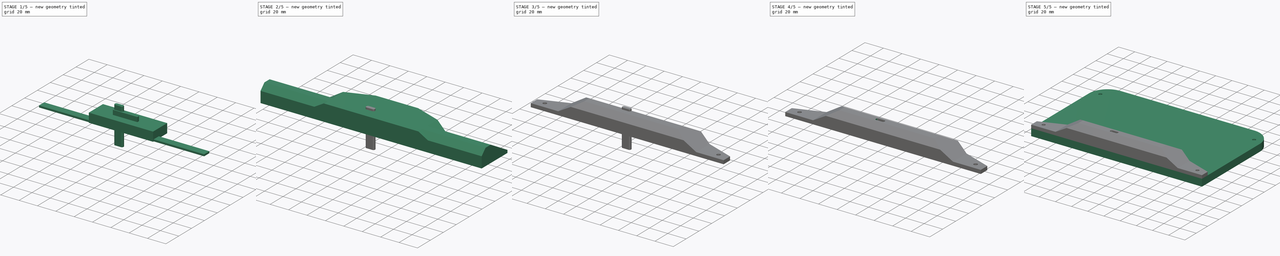
[diagram: build sequence overview — one tinted view per stage of 5, left to right]
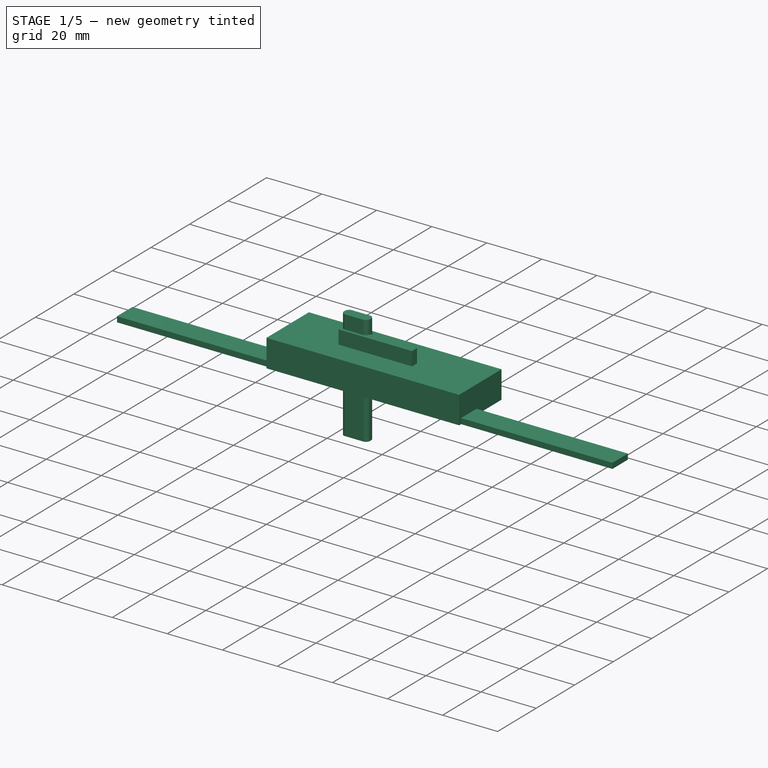
[diagram: stage 1 of 5 — iso view after this stage's code; geometry added in this stage tinted green]
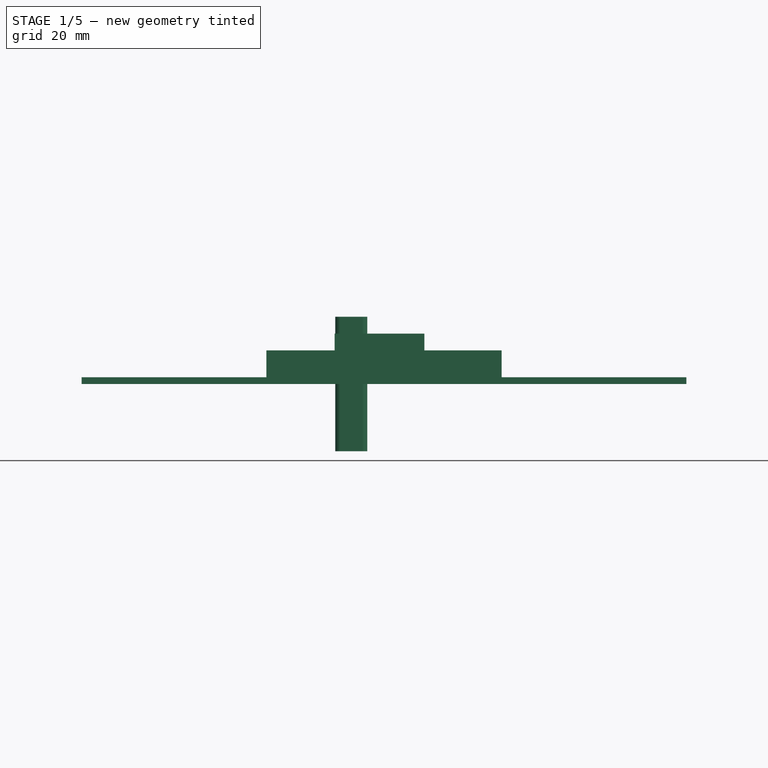
[diagram: stage 1 of 5 — front view after this stage's code; geometry added in this stage tinted green]
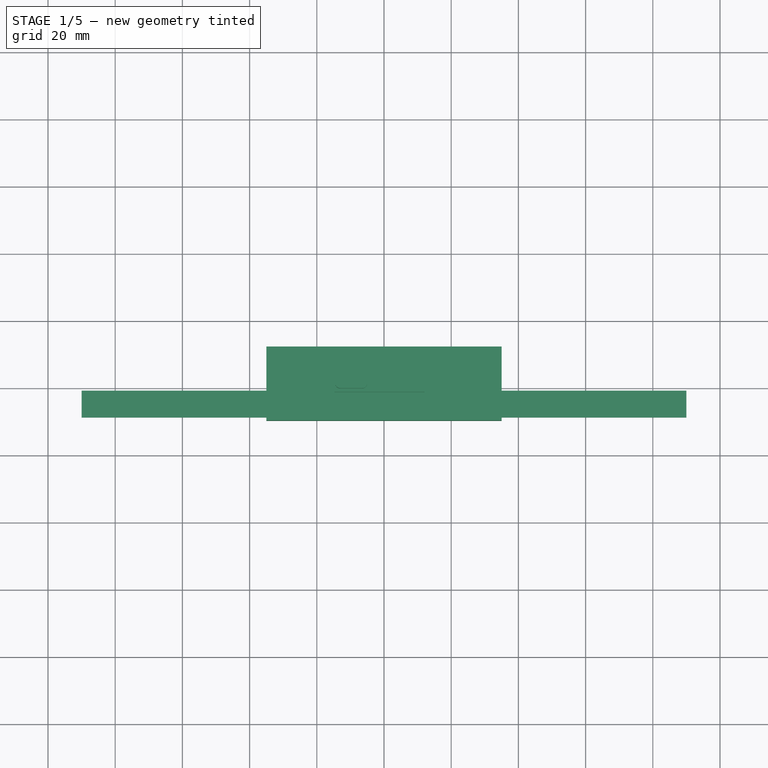
[diagram: stage 1 of 5 — top view after this stage's code; geometry added in this stage tinted green]
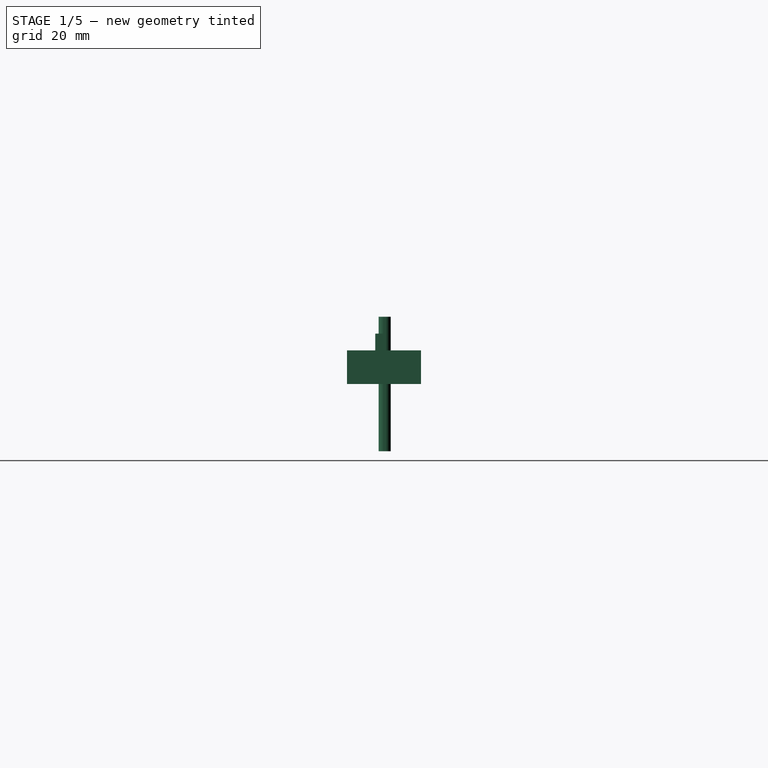
[diagram: stage 1 of 5 — right view after this stage's code; geometry added in this stage tinted green]
FCSTD DOCUMENT  (FreeCAD 0.21R33771 (Git))
Label: 6IN8SHELL-BACK
License: All rights reserved
LicenseURL: http://en.wikipedia.org/wiki/All_rights_reserved
objects: Sketcher::SketchObject×11, PartDesign::Pad×10, PartDesign::Body×10, PartDesign::Boolean×8, PartDesign::Fillet×5, Part::Extrusion×1, Part::MultiFuse×1
note: 61 computed .brp shape members not serialized (recipe doc carries the construction recipe); baked Part::Feature solids carry a one-line shape summary decoded from their .brp

FEATURE [Sketcher::SketchObject] Sketch008
  FullyConstrained = true
  MapMode = 5
  Support = -> [XY_Plane006]
  sketch-geometry (4):
    g0: LineSegment StartX=-35 StartY=-28 StartZ=0 EndX=35 EndY=-28 EndZ=0
    g1: LineSegment StartX=35 StartY=-28 StartZ=0 EndX=35 EndY=-50 EndZ=0
    g2: LineSegment StartX=35 StartY=-50 StartZ=0 EndX=-35 EndY=-50 EndZ=0
    g3: LineSegment StartX=-35 StartY=-50 StartZ=0 EndX=-35 EndY=-28 EndZ=0
  constraints (11):
    c: Coincident(g0,g1)
    c: Coincident(g1,g2)
    c: Coincident(g2,g3)
    c: Coincident(g3,g0)
    c: Horizontal(g2)
    c: Vertical(g1)
    c: Vertical(g3)
    c: Symmetric(g0,g0,g-2)
    c: DistanceX(g0,g0) = 70
    c: DistanceY(g3,g3) = 22
    c: DistanceY(g0,g-1) = 28
FEATURE [PartDesign::Pad] Pad005
  Direction = (0,0,1)
  Length = 10
  Length2 = 10
  Profile = -> Sketch008
  ReferenceAxis = -> Sketch008 [N_Axis]
  Type = 0
FEATURE [Sketcher::SketchObject] Sketch009
  FullyConstrained = true
  MapMode = 5
  Support = -> [XY_Plane007]
  sketch-geometry (4):
    g0: LineSegment StartX=90 StartY=-41 StartZ=0 EndX=34 EndY=-41 EndZ=0
    g1: LineSegment StartX=34 StartY=-41 StartZ=0 EndX=34 EndY=-49 EndZ=0
    g2: LineSegment StartX=34 StartY=-49 StartZ=0 EndX=90 EndY=-49 EndZ=0
    g3: LineSegment StartX=90 StartY=-49 StartZ=0 EndX=90 EndY=-41 EndZ=0
  constraints (12):
    c: Coincident(g0,g1)
    c: Coincident(g1,g2)
    c: Coincident(g2,g3)
    c: Coincident(g3,g0)
    c: Horizontal(g0)
    c: Horizontal(g2)
    c: Vertical(g1)
    c: Vertical(g3)
    c: DistanceX(g0,g0) = 56
    c: DistanceY(g3,g3) = 8
    c: DistanceX(g-1,g0) = 34
    c: DistanceY(g1,g-1) = 49
FEATURE [PartDesign::Pad] Pad006
  Direction = (0,0,1)
  Length = 2
  Length2 = 10
  Profile = -> Sketch009
  ReferenceAxis = -> Sketch009 [N_Axis]
  Type = 0
FEATURE [Sketcher::SketchObject] Sketch010
  FullyConstrained = true
  MapMode = 5
  Support = -> [XY_Plane008]
  sketch-geometry (4):
    g0: LineSegment StartX=12 StartY=-39 StartZ=0 EndX=-14.7 EndY=-39 EndZ=0
    g1: LineSegment StartX=-14.7 StartY=-39 StartZ=0 EndX=-14.7 EndY=-41.6 EndZ=0
    g2: LineSegment StartX=-14.7 StartY=-41.6 StartZ=0 EndX=12 EndY=-41.6 EndZ=0
    g3: LineSegment StartX=12 StartY=-41.6 StartZ=0 EndX=12 EndY=-39 EndZ=0
  constraints (12):
    c: Coincident(g0,g1)
    c: Coincident(g1,g2)
    c: Coincident(g2,g3)
    c: Coincident(g3,g0)
    c: Horizontal(g0)
    c: Horizontal(g2)
    c: Vertical(g1)
    c: Vertical(g3)
    c: DistanceX(g2,g2) = 26.7
    c: DistanceY(g3,g3) = 2.6
    c: DistanceY(g0,g-1) = 39
    c: DistanceX(g-1,g0) = 12
FEATURE [PartDesign::Pad] Pad007
  Direction = (0,0,1)
  Length = 15
  Length2 = 10
  Profile = -> Sketch010
  ReferenceAxis = -> Sketch010 [N_Axis]
  Type = 0
FEATURE [Sketcher::SketchObject] Sketch011
  FullyConstrained = true
  MapMode = 5
  Support = -> [XY_Plane009]
  sketch-geometry (10):
    g0: ArcOfCircle CenterX=-13 CenterY=-38.5 CenterZ=0 NormalX=0 NormalY=0 NormalZ=1 AngleXU=0 Radius=1.5 StartAngle=1.5708 EndAngle=3.14159
    g1: LineSegment StartX=-13 StartY=-37 StartZ=0 EndX=-6.5 EndY=-37 EndZ=0
    g2: ArcOfCircle CenterX=-6.5 CenterY=-38.5 CenterZ=0 NormalX=0 NormalY=0 NormalZ=1 AngleXU=0 Radius=1.5 StartAngle=-1.8e-15 EndAngle=1.5708
    g3: LineSegment StartX=-5 StartY=-38.5 StartZ=0 EndX=-5 EndY=-39.1 EndZ=0
    g4: ArcOfCircle CenterX=-6.5 CenterY=-39.1 CenterZ=0 NormalX=0 NormalY=0 NormalZ=1 AngleXU=0 Radius=1.5 StartAngle=4.71239 EndAngle=6.28319
    g5: LineSegment StartX=-6.5 StartY=-40.6 StartZ=0 EndX=-13 EndY=-40.6 EndZ=0
    g6: ArcOfCircle CenterX=-13 CenterY=-39.1 CenterZ=0 NormalX=0 NormalY=0 NormalZ=1 AngleXU=0 Radius=1.5 StartAngle=3.14159 EndAngle=4.71239
    g7: LineSegment StartX=-14.5 StartY=-39.1 StartZ=0 EndX=-14.5 EndY=-38.5 EndZ=0
    g8: GeomPoint X=-14.5 Y=-37 Z=0
    g9: GeomPoint X=-5 Y=-40.6 Z=0
  constraints (24):
    c: Tangent(g0,g1) = 1.5708
    c: Tangent(g1,g2) = 1.5708
    c: Tangent(g2,g3) = 1.5708
    c: Tangent(g3,g4) = 1.5708
    c: Tangent(g4,g5) = 1.5708
    c: Tangent(g5,g6) = 1.5708
    c: Tangent(g6,g7) = 1.5708
    c: Tangent(g7,g0) = 1.5708
    c: Horizontal(g1)
    c: Horizontal(g5)
    c: Vertical(g3)
    c: Vertical(g7)
    c: Equal(g0,g2)
    c: Equal(g2,g4)
    c: Equal(g4,g6)
    c: PointOnObject(g8,g1)
    c: PointOnObject(g8,g7)
    c: PointOnObject(g9,g3)
    c: PointOnObject(g9,g5)
    c: DistanceX(g0,g2) = 9.5
    c: DistanceY(g4,g1) = 3.6
    c: DistanceY(g1,g-1) = 37
    c: DistanceX(g2,g-1) = 5
    c: Radius(g0) = 1.5
FEATURE [PartDesign::Pad] Pad008
  Direction = (0,0,1)
  Length = 20
  Length2 = 20
  Profile = -> Sketch011
  ReferenceAxis = -> Sketch011 [N_Axis]
  Type = 4
FEATURE [Sketcher::SketchObject] Sketch013
  FullyConstrained = true
  MapMode = 5
  Support = -> [XY_Plane010]
  sketch-geometry (4):
    g0: LineSegment StartX=-90 StartY=-41 StartZ=0 EndX=-34 EndY=-41 EndZ=0
    g1: LineSegment StartX=-34 StartY=-41 StartZ=0 EndX=-34 EndY=-49 EndZ=0
    g2: LineSegment StartX=-34 StartY=-49 StartZ=0 EndX=-90 EndY=-49 EndZ=0
    g3: LineSegment StartX=-90 StartY=-49 StartZ=0 EndX=-90 EndY=-41 EndZ=0
  constraints (12):
    c: Coincident(g0,g1)
    c: Coincident(g1,g2)
    c: Coincident(g2,g3)
    c: Coincident(g3,g0)
    c: Horizontal(g0)
    c: Horizontal(g2)
    c: Vertical(g1)
    c: Vertical(g3)
    c: DistanceX(g2,g2) = 56
    c: DistanceY(g3,g3) = 8
    c: DistanceX(g0,g-1) = 34
    c: DistanceY(g1,g-1) = 49
FEATURE [PartDesign::Pad] Pad009
  Direction = (0,0,1)
  Length = 2
  Length2 = 10
  Profile = -> Sketch013
  ReferenceAxis = -> Sketch013 [N_Axis]
  Type = 0
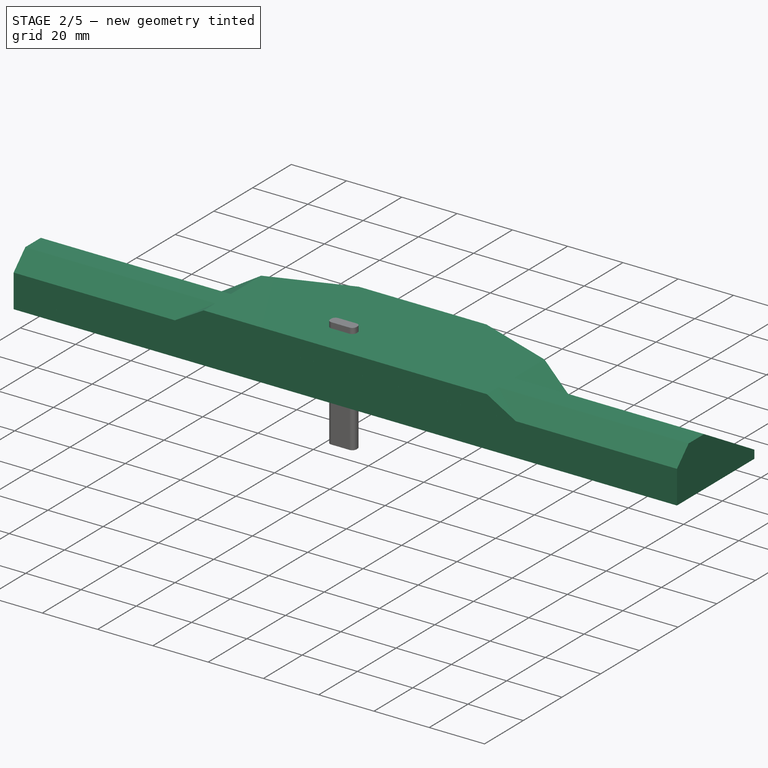
[diagram: stage 2 of 5 — iso view after this stage's code; geometry added in this stage tinted green]
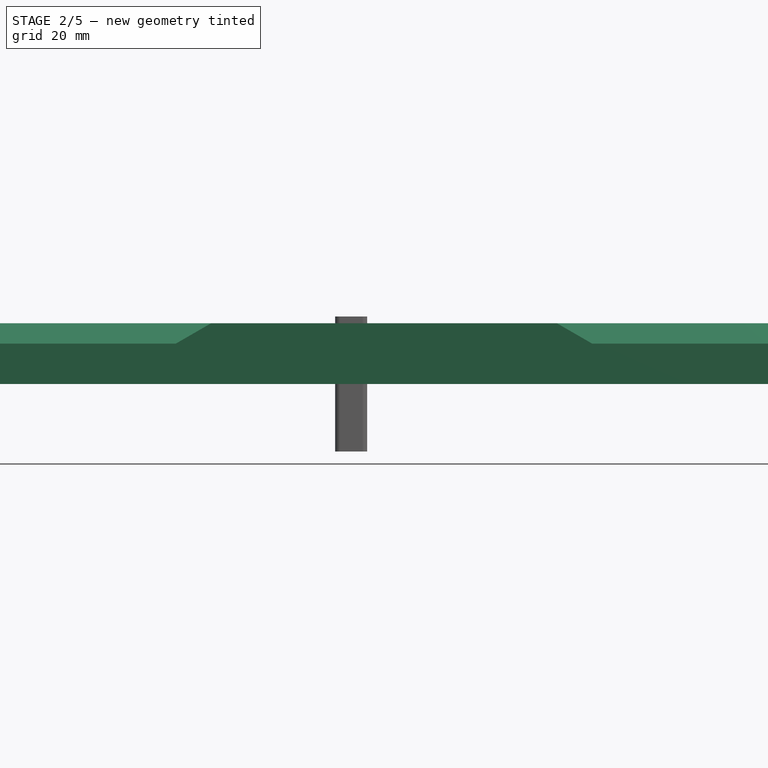
[diagram: stage 2 of 5 — front view after this stage's code; geometry added in this stage tinted green]
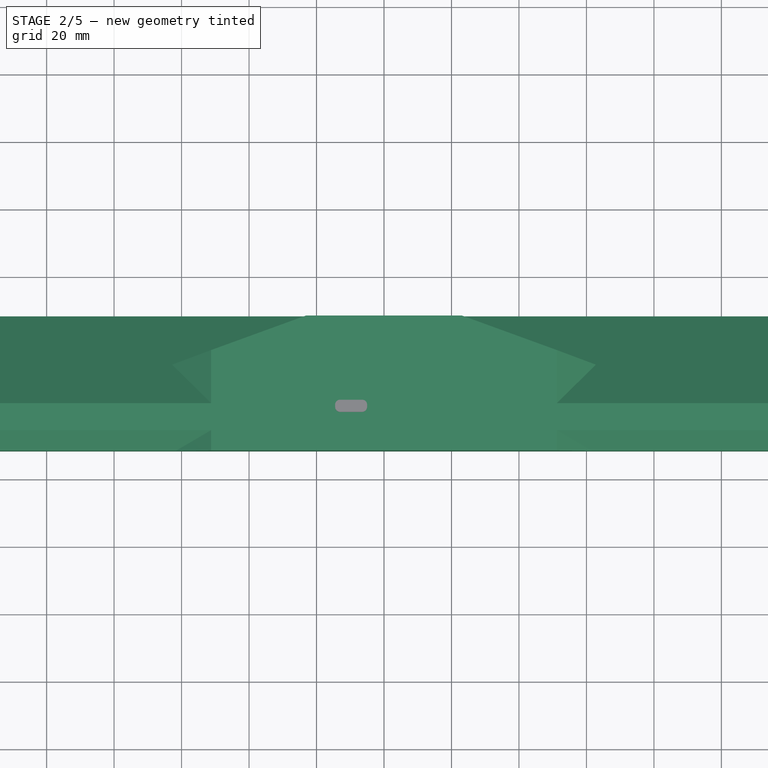
[diagram: stage 2 of 5 — top view after this stage's code; geometry added in this stage tinted green]
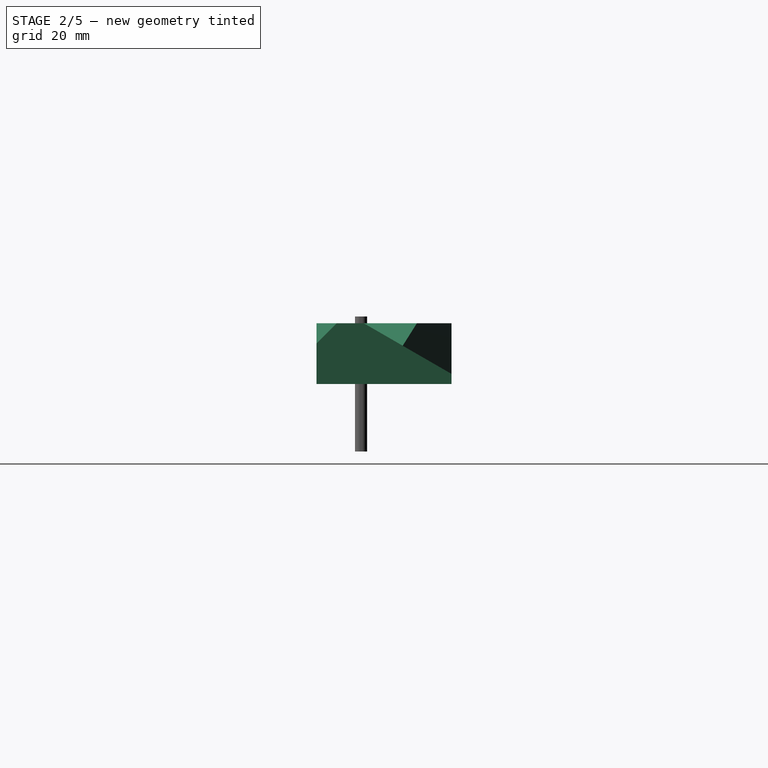
[diagram: stage 2 of 5 — right view after this stage's code; geometry added in this stage tinted green]
FEATURE [Sketcher::SketchObject] Sketch002
  FullyConstrained = true
  MapMode = 5
  sketch-geometry (8):
    g0: LineSegment StartX=-105.5 StartY=-52 StartZ=0 EndX=105.5 EndY=-52 EndZ=0
    g1: LineSegment StartX=105.5 StartY=-52 StartZ=0 EndX=105.5 EndY=-42 EndZ=0
    g2: LineSegment StartX=-105.5 StartY=-52 StartZ=0 EndX=-105.5 EndY=-42 EndZ=0
    g3: Circle CenterX=-95 CenterY=-45 CenterZ=0 NormalX=0 NormalY=0 NormalZ=1 AngleXU=0 Radius=2
    g4: Circle CenterX=95 CenterY=-45 CenterZ=0 NormalX=0 NormalY=0 NormalZ=1 AngleXU=0 Radius=2
    g5: LineSegment StartX=-105.5 StartY=-42 StartZ=0 EndX=-23.0757 EndY=-12 EndZ=0
    g6: LineSegment StartX=-23.0757 StartY=-12 StartZ=0 EndX=23.0757 EndY=-12 EndZ=0
    g7: LineSegment StartX=105.5 StartY=-42 StartZ=0 EndX=23.0757 EndY=-12 EndZ=0
  constraints (22):
    c: Coincident(g1,g0)
    c: Vertical(g1)
    c: Coincident(g0,g2)
    c: Symmetric(g0,g0,g-2)
    c: DistanceY(g0,g-1) = 52
    c: DistanceX(g0,g-1) = 105.5
    c: Equal(g2,g1)
    c: Vertical(g2)
    c: DistanceY(g2,g2) = 10
    c: Radius(g3) = 2
    c: DistanceX(g3,g-1) = 95
    c: DistanceY(g3,g-1) = 45
    c: Radius(g4) = 2
    c: Symmetric(g4,g3,g-2)
    c: Coincident(g5,g2)
    c: Coincident(g6,g5)
    c: Horizontal(g6)
    c: Coincident(g7,g1)
    c: Coincident(g7,g6)
    c: Angle(g5) = 0.349066
    c: Angle(g7) = 2.79253
    c: DistanceY(g6,g-1) = 12
FEATURE [PartDesign::Pad] Pad
  Direction = (0,0,1)
  Length = 18
  Length2 = 10
  Profile = -> Sketch002
  ReferenceAxis = -> Sketch002 [N_Axis]
  Type = 0
FEATURE [PartDesign::Body] Body
  Group = -> [Sketch002,Pad]
  Origin = -> Origin
  Tip = -> Pad
FEATURE [Sketcher::SketchObject] Sketch
  FullyConstrained = true
  MapMode = 5
  Placement = pos=(0,0,0) rot=(1,0,0;1.5708rad)
  Support = -> [XZ_Plane001]
  sketch-geometry (8):
    g0: LineSegment StartX=-105.5 StartY=0 StartZ=0 EndX=-105.5 EndY=4 EndZ=0
    g1: LineSegment StartX=-105.5 StartY=4 StartZ=0 EndX=-75.5 EndY=4 EndZ=0
    g2: LineSegment StartX=-75.5 StartY=4 StartZ=0 EndX=-51.2513 EndY=18 EndZ=0
    g3: LineSegment StartX=-105.5 StartY=0 StartZ=0 EndX=105.5 EndY=0 EndZ=0
    g4: LineSegment StartX=105.5 StartY=0 StartZ=0 EndX=105.5 EndY=4 EndZ=0
    g5: LineSegment StartX=105.5 StartY=4 StartZ=0 EndX=75.5 EndY=4 EndZ=0
    g6: LineSegment StartX=75.5 StartY=4 StartZ=0 EndX=51.2513 EndY=18 EndZ=0
    g7: LineSegment StartX=-51.2513 StartY=18 StartZ=0 EndX=51.2513 EndY=18 EndZ=0
  constraints (24):
    c: PointOnObject(g0,g-1)
    c: Vertical(g0)
    c: DistanceY(g0,g0) = 4
    c: DistanceX(g0) = -105.5
    c: Coincident(g1,g0)
    c: Horizontal(g1)
    c: DistanceX(g1,g1) = 30
    c: Coincident(g2,g1)
    c: Angle(g2) = 0.523599
    c: Coincident(g3,g0)
    c: PointOnObject(g3,g-1)
    c: DistanceX(g3,g3) = 211
    c: Coincident(g4,g3)
    c: Vertical(g4)
    c: DistanceY(g4,g4) = 4
    c: Coincident(g5,g4)
    c: Horizontal(g5)
    c: DistanceX(g5,g5) = 30
    c: Coincident(g6,g5)
    c: Angle(g6) = 2.61799
    c: Coincident(g7,g2)
    c: Coincident(g7,g6)
    c: Horizontal(g7)
    c: DistanceY(g-1,g2) = 18
FEATURE [PartDesign::Pad] Pad001
  Direction = (0,-1,-2e-16)
  Length = 100
  Length2 = 10
  Placement = pos=(0,0,0) rot=(1,0,0;1.5708rad)
  Profile = -> Sketch
  ReferenceAxis = -> Sketch [N_Axis]
  Type = 0
FEATURE [PartDesign::Boolean] Boolean
  BaseFeature = -> Pad001
  Group = -> [Body]
  Type = 2
FEATURE [PartDesign::Body] Body001
  Group = -> [Sketch,Pad001,Boolean]
  Origin = -> Origin001
  Tip = -> Boolean
FEATURE [Sketcher::SketchObject] Sketch003
  FullyConstrained = true
  MapMode = 5
  Placement = pos=(0,0,0) rot=(0.57735,0.57735,0.57735;2.0944rad)
  Support = -> [YZ_Plane002]
  sketch-geometry (6):
    g0: LineSegment StartX=-12 StartY=0 StartZ=0 EndX=-12 EndY=3 EndZ=0
    g1: LineSegment StartX=-12 StartY=3 StartZ=0 EndX=-37.9808 EndY=18 EndZ=0
    g2: LineSegment StartX=-37.9808 StartY=18 StartZ=0 EndX=-45.9808 EndY=18 EndZ=0
    g3: LineSegment StartX=-45.9808 StartY=18 StartZ=0 EndX=-52 EndY=11.9808 EndZ=0
    g4: LineSegment StartX=-52 StartY=11.9808 StartZ=0 EndX=-52 EndY=0 EndZ=0
    g5: LineSegment StartX=-12 StartY=0 StartZ=0 EndX=-52 EndY=0 EndZ=0
  constraints (18):
    c: PointOnObject(g0,g-1)
    c: Vertical(g0)
    c: DistanceY(g0,g0) = 3
    c: DistanceX(g0,g-1) = 12
    c: Coincident(g1,g0)
    c: Angle(g1) = 2.61799
    c: DistanceY(g0,g1) = 18
    c: Coincident(g2,g1)
    c: Horizontal(g2)
    c: DistanceX(g2,g2) = 8
    c: Coincident(g3,g2)
    c: Angle(g3) = -2.35619
    c: Coincident(g4,g3)
    c: PointOnObject(g4,g-1)
    c: Vertical(g4)
    c: Coincident(g5,g0)
    c: Coincident(g5,g4)
    c: DistanceX(g5,g5) = 40
FEATURE [PartDesign::Pad] Pad002
  Direction = (1,-2e-16,3e-16)
  Length = 120
  Length2 = 120
  Placement = pos=(0,0,0) rot=(0.57735,0.57735,0.57735;2.0944rad)
  Profile = -> Sketch003
  ReferenceAxis = -> Sketch003 [N_Axis]
  Type = 4
FEATURE [Sketcher::SketchObject] Sketch007
  FullyConstrained = true
  MapMode = 5
  Support = -> [XY_Plane005]
  sketch-geometry (4):
    g0: LineSegment StartX=-20 StartY=-14 StartZ=0 EndX=20 EndY=-14 EndZ=0
    g1: LineSegment StartX=20 StartY=-14 StartZ=0 EndX=20 EndY=-50 EndZ=0
    g2: LineSegment StartX=20 StartY=-50 StartZ=0 EndX=-20 EndY=-50 EndZ=0
    g3: LineSegment StartX=-20 StartY=-50 StartZ=0 EndX=-20 EndY=-14 EndZ=0
  constraints (11):
    c: Coincident(g0,g1)
    c: Coincident(g1,g2)
    c: Coincident(g2,g3)
    c: Coincident(g3,g0)
    c: Horizontal(g2)
    c: Vertical(g1)
    c: Vertical(g3)
    c: Symmetric(g0,g0,g-2)
    c: DistanceX(g0,g0) = 40
    c: DistanceY(g0,g-1) = 14
    c: DistanceY(g3,g3) = 36
FEATURE [PartDesign::Pad] Pad004
  Direction = (0,0,1)
  Length = 1.5
  Length2 = 10
  Profile = -> Sketch007
  ReferenceAxis = -> Sketch007 [N_Axis]
  Type = 0
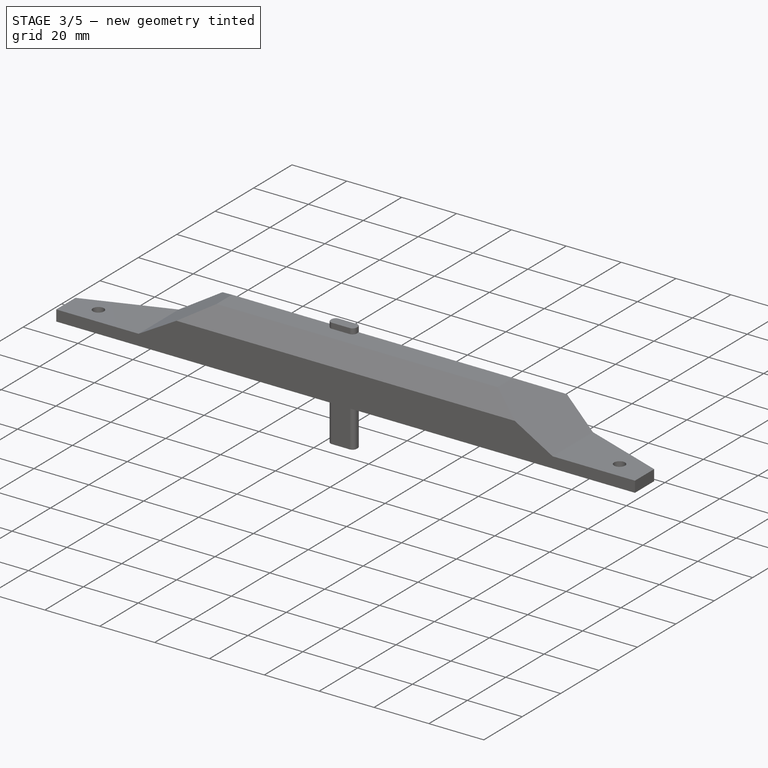
[diagram: stage 3 of 5 — iso view after this stage's code; geometry added in this stage tinted green]
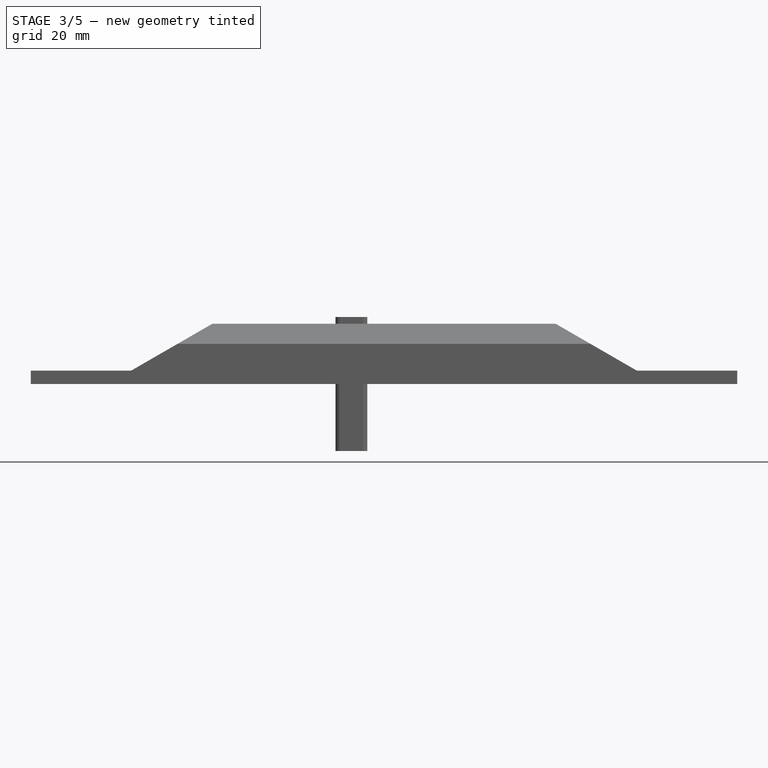
[diagram: stage 3 of 5 — front view after this stage's code; geometry added in this stage tinted green]
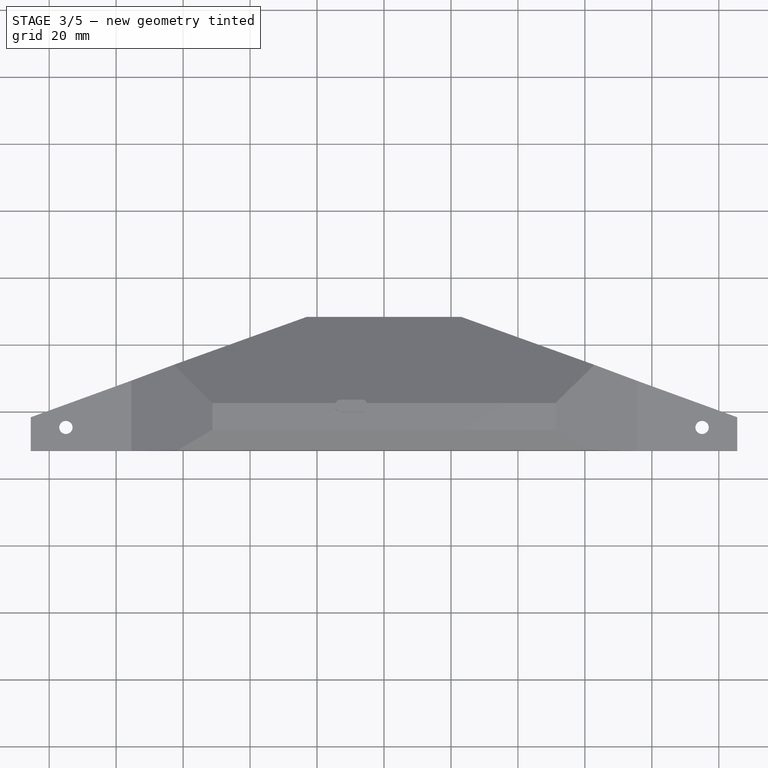
[diagram: stage 3 of 5 — top view after this stage's code; geometry added in this stage tinted green]
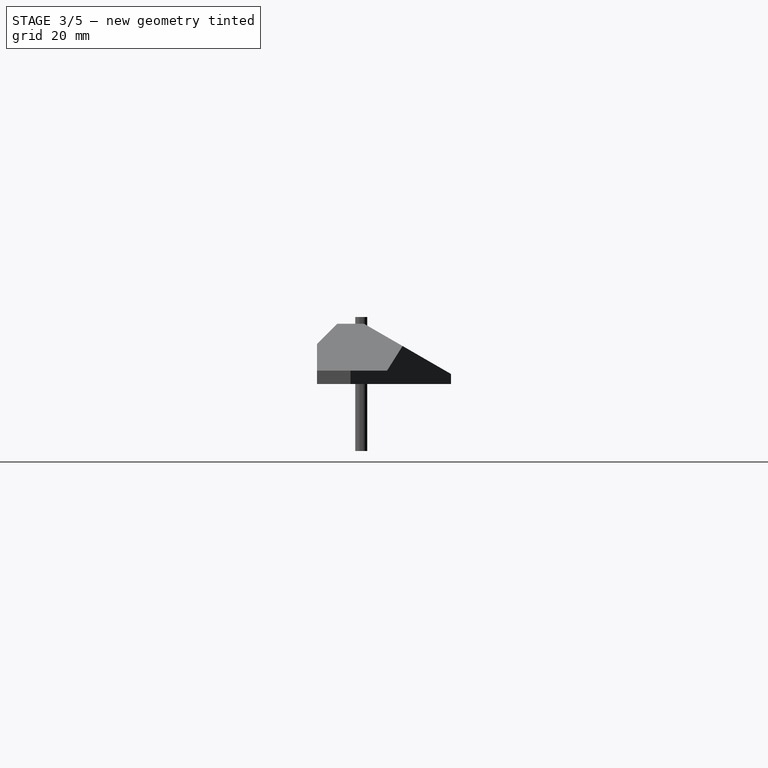
[diagram: stage 3 of 5 — right view after this stage's code; geometry added in this stage tinted green]
FEATURE [PartDesign::Boolean] Boolean001
  BaseFeature = -> Pad002
  Group = -> [Body001]
  Type = 2
FEATURE [PartDesign::Body] Body004
  Group = -> [Sketch007,Pad004]
  Origin = -> Origin004
  Tip = -> Pad004
FEATURE [PartDesign::Boolean] Boolean002
  BaseFeature = -> Boolean001
  Group = -> [Body004]
  Type = 1
FEATURE [PartDesign::Body] Body005
  Group = -> [Sketch008,Pad005]
  Origin = -> Origin005
  Tip = -> Pad005
FEATURE [PartDesign::Boolean] Boolean003
  BaseFeature = -> Boolean002
  Group = -> [Body005]
  Type = 1
FEATURE [PartDesign::Body] Body006
  Group = -> [Sketch009,Pad006]
  Origin = -> Origin006
  Tip = -> Pad006
FEATURE [PartDesign::Boolean] Boolean004
  BaseFeature = -> Boolean003
  Group = -> [Body006]
  Type = 1
FEATURE [PartDesign::Body] Body007
  Group = -> [Sketch010,Pad007]
  Origin = -> Origin007
  Placement = pos=(0,-3.5,1) rot=(0,0,1;0rad)
  Tip = -> Pad007
FEATURE [PartDesign::Boolean] Boolean005
  BaseFeature = -> Boolean004
  Group = -> [Body007]
  Type = 1
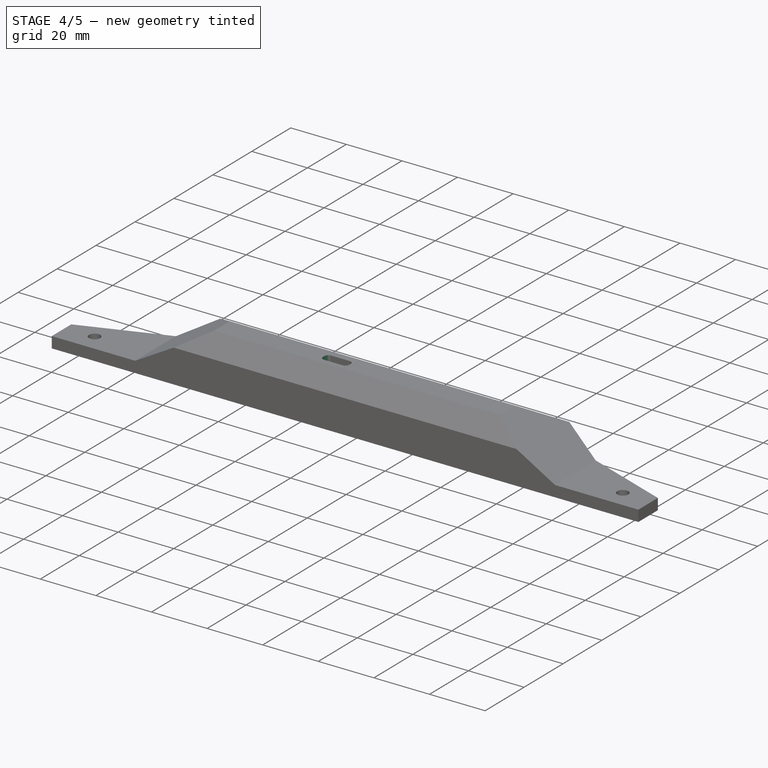
[diagram: stage 4 of 5 — iso view after this stage's code; geometry added in this stage tinted green]
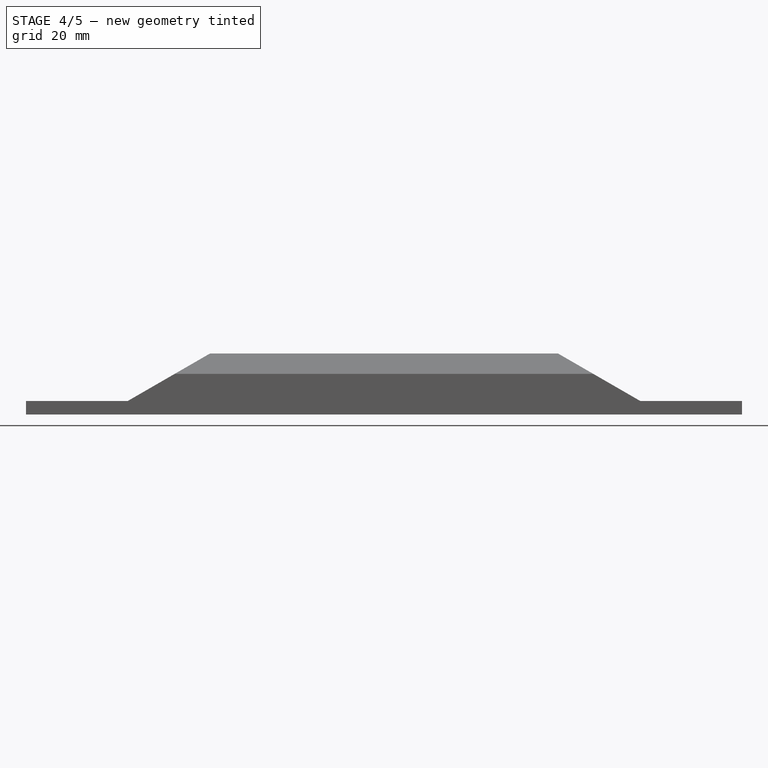
[diagram: stage 4 of 5 — front view after this stage's code; geometry added in this stage tinted green]
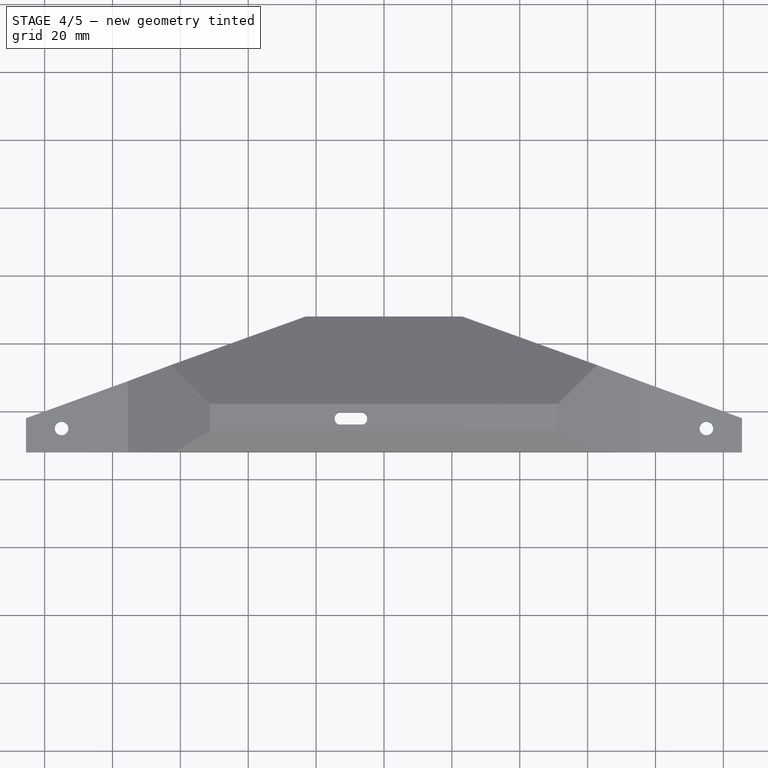
[diagram: stage 4 of 5 — top view after this stage's code; geometry added in this stage tinted green]
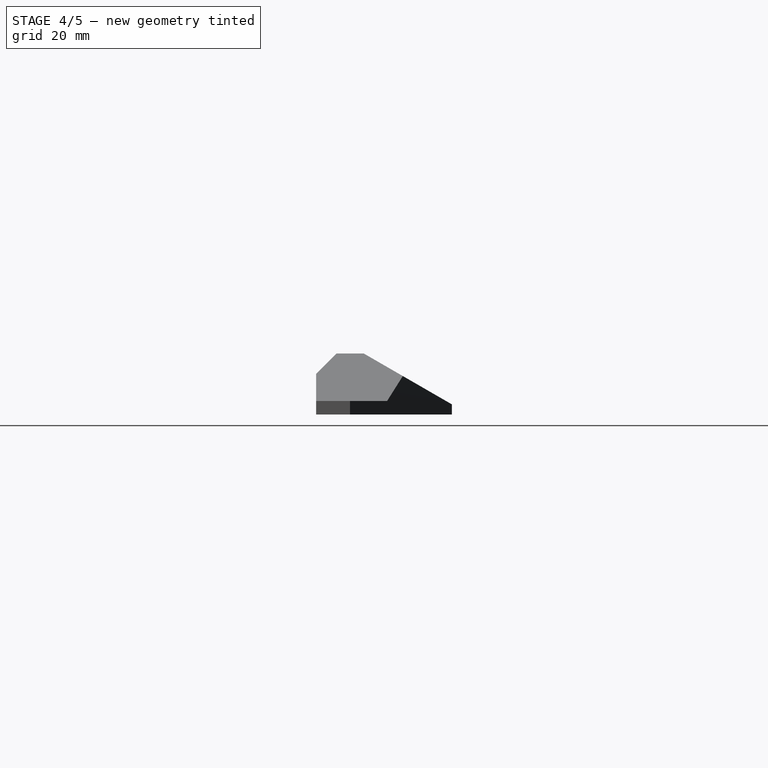
[diagram: stage 4 of 5 — right view after this stage's code; geometry added in this stage tinted green]
FEATURE [PartDesign::Body] Body008
  Group = -> [Sketch011,Pad008]
  Origin = -> Origin008
  Placement = pos=(0,-3.5,11) rot=(0,0,1;0rad)
  Tip = -> Pad008
FEATURE [PartDesign::Boolean] Boolean006
  BaseFeature = -> Boolean005
  Group = -> [Body008]
  Type = 1
FEATURE [PartDesign::Fillet] Fillet
  Base = -> Boolean006 [Edge86]
  BaseFeature = -> Boolean006
  Radius = 1
  SupportTransform = false
  UseAllEdges = false
FEATURE [PartDesign::Fillet] Fillet001
  Base = -> Fillet [Edge85]
  BaseFeature = -> Fillet
  Radius = 1
  SupportTransform = false
  UseAllEdges = false
FEATURE [PartDesign::Fillet] Fillet002
  Base = -> Fillet001 [Edge32]
  BaseFeature = -> Fillet001
  Radius = 1
  SupportTransform = false
  UseAllEdges = false
FEATURE [PartDesign::Fillet] Fillet003
  Base = -> Fillet002 [Edge12]
  BaseFeature = -> Fillet002
  Radius = 1
  SupportTransform = false
  UseAllEdges = false
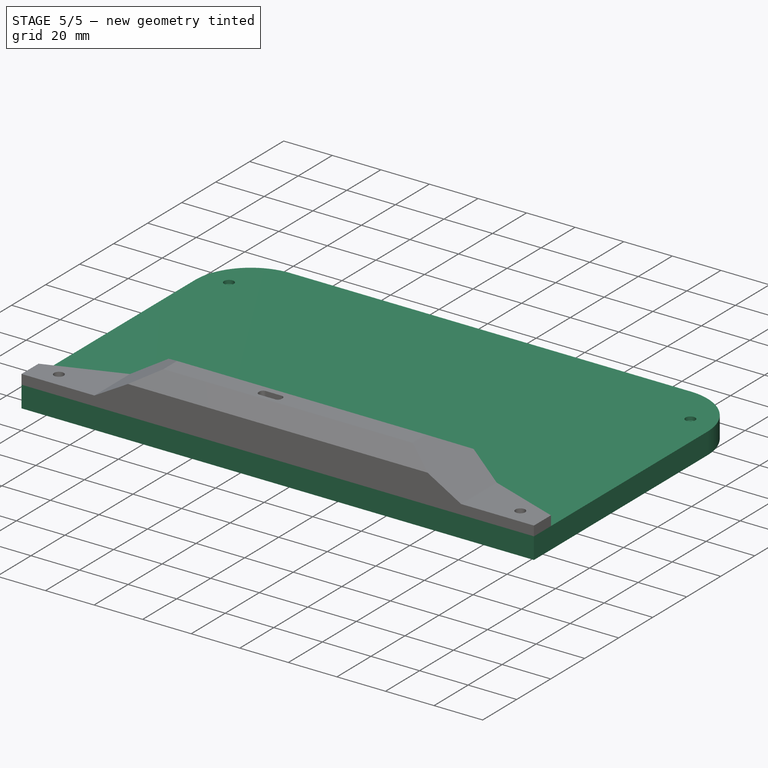
[diagram: stage 5 of 5 — iso view after this stage's code; geometry added in this stage tinted green]
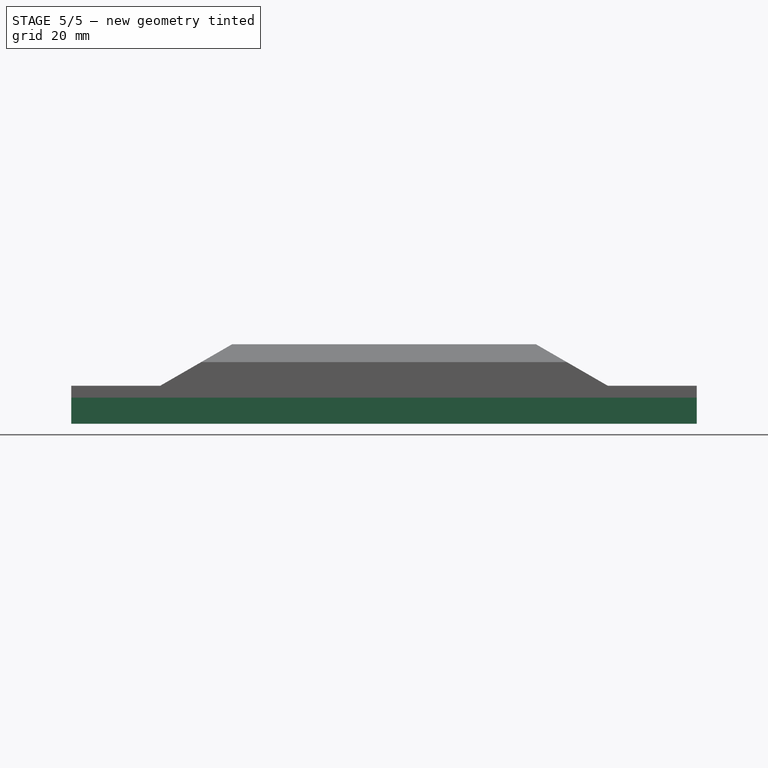
[diagram: stage 5 of 5 — front view after this stage's code; geometry added in this stage tinted green]
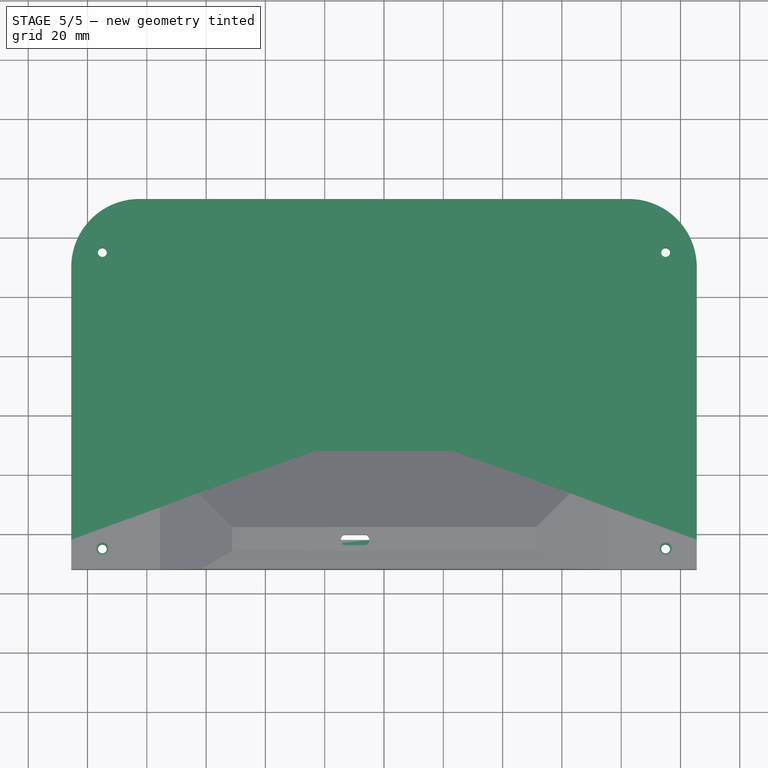
[diagram: stage 5 of 5 — top view after this stage's code; geometry added in this stage tinted green]
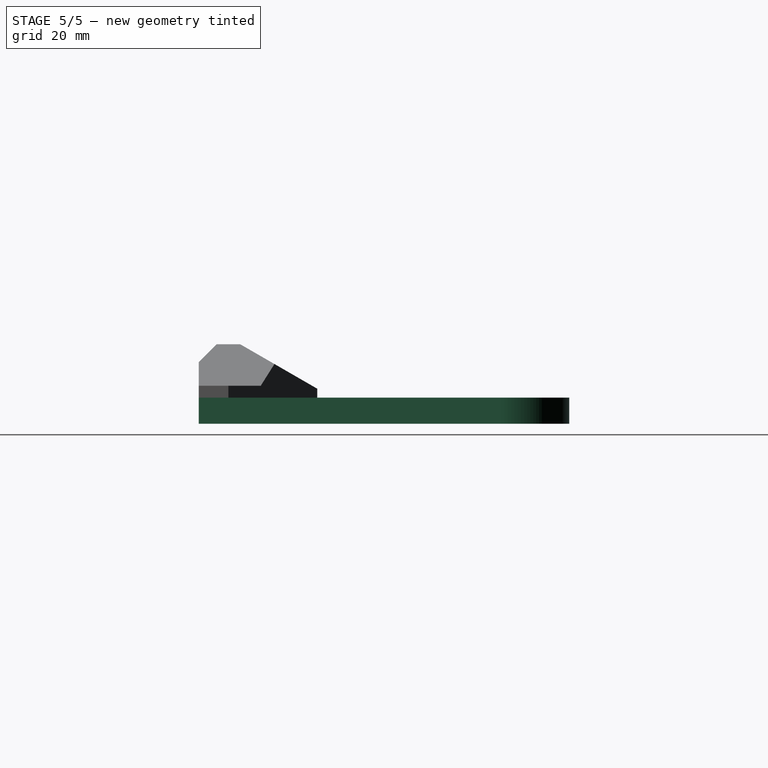
[diagram: stage 5 of 5 — right view after this stage's code; geometry added in this stage tinted green]
FEATURE [Sketcher::SketchObject] Sketch004
  FullyConstrained = true
  MapMode = 5
  Support = -> [XY_Plane003]
  sketch-geometry (34):
    g0: LineSegment StartX=-105.5 StartY=-52 StartZ=0 EndX=105.5 EndY=-52 EndZ=0
    g1: LineSegment StartX=105.5 StartY=-52 StartZ=0 EndX=105.5 EndY=50 EndZ=0
    g2: LineSegment StartX=-105.5 StartY=-52 StartZ=0 EndX=-105.5 EndY=50 EndZ=0
    g3: LineSegment StartX=-82.5 StartY=73 StartZ=0 EndX=82.5 EndY=73 EndZ=0
    g4: ArcOfCircle CenterX=-82.5 CenterY=50 CenterZ=0 NormalX=0 NormalY=0 NormalZ=1 AngleXU=0 Radius=23 StartAngle=1.5708 EndAngle=3.14159
    g5: ArcOfCircle CenterX=82.5 CenterY=50 CenterZ=0 NormalX=0 NormalY=0 NormalZ=1 AngleXU=0 Radius=23 StartAngle=0 EndAngle=1.5708
    g6: LineSegment StartX=-14 StartY=-19 StartZ=0 EndX=6 EndY=-19 EndZ=0
    g7: LineSegment StartX=6 StartY=-21 StartZ=0 EndX=-14 EndY=-21 EndZ=0
    g8: ArcOfCircle CenterX=-14 CenterY=-20 CenterZ=0 NormalX=0 NormalY=0 NormalZ=1 AngleXU=0 Radius=1 StartAngle=1.5708 EndAngle=4.71239
    g9: ArcOfCircle CenterX=6 CenterY=-20 CenterZ=0 NormalX=0 NormalY=0 NormalZ=1 AngleXU=0 Radius=1 StartAngle=4.71239 EndAngle=7.85398
    g10: ArcOfCircle CenterX=4 CenterY=-29 CenterZ=0 NormalX=0 NormalY=0 NormalZ=1 AngleXU=0 Radius=2 StartAngle=1.5708 EndAngle=3.14159
    g11: LineSegment StartX=4 StartY=-27 StartZ=0 EndX=40 EndY=-27 EndZ=0
    g12: ArcOfCircle CenterX=40 CenterY=-29 CenterZ=0 NormalX=0 NormalY=0 NormalZ=1 AngleXU=0 Radius=2 StartAngle=3.6382e-12 EndAngle=1.5708
    g13: LineSegment StartX=42 StartY=-29 StartZ=0 EndX=42 EndY=-40 EndZ=0
    g14: ArcOfCircle CenterX=40 CenterY=-40 CenterZ=0 NormalX=0 NormalY=0 NormalZ=1 AngleXU=0 Radius=2 StartAngle=4.71239 EndAngle=6.28319
    g15: LineSegment StartX=40 StartY=-42 StartZ=0 EndX=4 EndY=-42 EndZ=0
    g16: ArcOfCircle CenterX=4 CenterY=-40 CenterZ=0 NormalX=0 NormalY=0 NormalZ=1 AngleXU=0 Radius=2 StartAngle=3.14159 EndAngle=4.71239
    g17: LineSegment StartX=2 StartY=-40 StartZ=0 EndX=2 EndY=-29 EndZ=0
    g18: GeomPoint X=2 Y=-27 Z=0
    g19: GeomPoint X=42 Y=-42 Z=0
    g20: Circle CenterX=-95 CenterY=-45 CenterZ=0 NormalX=0 NormalY=0 NormalZ=1 AngleXU=0 Radius=2
    g21: Circle CenterX=95 CenterY=-45 CenterZ=0 NormalX=0 NormalY=0 NormalZ=1 AngleXU=0 Radius=2
    g22: Circle CenterX=-95 CenterY=55 CenterZ=0 NormalX=0 NormalY=0 NormalZ=1 AngleXU=0 Radius=2
    g23: Circle CenterX=95 CenterY=55 CenterZ=0 NormalX=0 NormalY=0 NormalZ=1 AngleXU=0 Radius=2
    g24: ArcOfCircle CenterX=-89 CenterY=-42 CenterZ=0 NormalX=0 NormalY=0 NormalZ=1 AngleXU=0 Radius=1 StartAngle=1.5708 EndAngle=3.14159
    g25: LineSegment StartX=-89 StartY=-41 StartZ=0 EndX=-87 EndY=-41 EndZ=0
    g26: ArcOfCircle CenterX=-87 CenterY=-42 CenterZ=0 NormalX=0 NormalY=0 NormalZ=1 AngleXU=0 Radius=1 StartAngle=-1.8e-15 EndAngle=1.5708
    g27: LineSegment StartX=-86 StartY=-42 StartZ=0 EndX=-86 EndY=-48 EndZ=0
    g28: ArcOfCircle CenterX=-87 CenterY=-48 CenterZ=0 NormalX=0 NormalY=0 NormalZ=1 AngleXU=0 Radius=1 StartAngle=4.71239 EndAngle=6.28319
    g29: LineSegment StartX=-87 StartY=-49 StartZ=0 EndX=-89 EndY=-49 EndZ=0
    g30: ArcOfCircle CenterX=-89 CenterY=-48 CenterZ=0 NormalX=0 NormalY=0 NormalZ=1 AngleXU=0 Radius=1 StartAngle=3.14159 EndAngle=4.71239
    g31: LineSegment StartX=-90 StartY=-48 StartZ=0 EndX=-90 EndY=-42 EndZ=0
    g32: GeomPoint X=-90 Y=-41 Z=0
    g33: GeomPoint X=-86 Y=-49 Z=0
  constraints (90):
    c: Coincident(g1,g0)
    c: Vertical(g1)
    c: Coincident(g0,g2)
    c: Symmetric(g0,g0,g-2)
    c: DistanceY(g0,g-1) = 52
    c: DistanceX(g0,g-1) = 105.5
    c: Symmetric(g3,g3,g-2)
    c: DistanceY(g-1,g3) = 73
    c: Coincident(g2,g4)
    c: Coincident(g4,g3)
    c: DistanceX(g4,g-1) = 82.5
    c: Equal(g2,g1)
    c: DistanceY(g-1,g2) = 50
    c: Coincident(g5,g1)
    c: Coincident(g5,g3)
    c: Symmetric(g5,g4,g-2)
    c: Horizontal(g6)
    c: Coincident(g8,g6)
    c: Coincident(g8,g7)
    c: DistanceY(g8,g-1) = 20
    c: Tangent(g8,g6,g6) = 1.5708
    c: Tangent(g7,g8,g7) = 1.5708
    c: Coincident(g6,g9)
    c: Tangent(g6,g9,g6) = 1.5708
    c: Coincident(g7,g9)
    c: Tangent(g7,g9,g7) = 1.5708
    c: DistanceX(g9) = 6
    c: DistanceY(g7,g6) = 2
    c: Tangent(g5,g3,g3) = 1.5708
    c: Tangent(g10,g11) = 1.5708
    c: Tangent(g11,g12) = 1.5708
    c: Tangent(g12,g13) = 1.5708
    c: Tangent(g13,g14) = 1.5708
    c: Tangent(g14,g15) = 1.5708
    c: Tangent(g15,g16) = 1.5708
    c: Tangent(g16,g17) = 1.5708
    c: Tangent(g17,g10) = 1.5708
    c: Horizontal(g11)
    c: Horizontal(g15)
    c: Vertical(g13)
    c: Vertical(g17)
    c: Equal(g10,g12)
    c: Equal(g12,g14)
    c: Equal(g14,g16)
    c: PointOnObject(g18,g11)
    c: PointOnObject(g18,g17)
    c: PointOnObject(g19,g13)
    c: PointOnObject(g19,g15)
    c: Distance(g10,g10) = 2
    c: DistanceX(g16,g13) = 40
    c: DistanceY(g15,g10) = 15
    c: DistanceX(g-1,g16) = 2
    c: DistanceY(g0,g15) = 10
    c: DistanceX(g8,g-1) = 14
    c: Radius(g9) = 1
    c: Radius(g20) = 2
    c: DistanceX(g20,g-1) = 95
    c: DistanceY(g20,g-1) = 45
    c: Radius(g21) = 2
    c: Symmetric(g20,g21,g-2)
    c: Equal(g20,g22) = 1.5
    c: DistanceY(g20,g22) = 100
    c: DistanceX(g22,g20) = 0
    c: Equal(g21,g23) = 1.5
    c: DistanceX(g23,g21) = 0
    c: DistanceY(g21,g23) = 100
    c: Tangent(g24,g25) = 1.5708
    c: Tangent(g25,g26) = 1.5708
    c: Tangent(g26,g27) = 1.5708
    c: Tangent(g27,g28) = 1.5708
    c: Tangent(g28,g29) = 1.5708
    c: Tangent(g29,g30) = 1.5708
    c: Tangent(g30,g31) = 1.5708
    c: Tangent(g31,g24) = 1.5708
    c: Horizontal(g25)
    c: Horizontal(g29)
    c: Vertical(g27)
    c: Vertical(g31)
    c: Equal(g24,g26)
    c: Equal(g26,g28)
    c: Equal(g28,g30)
    c: PointOnObject(g32,g25)
    c: PointOnObject(g32,g31)
    c: PointOnObject(g33,g27)
    c: PointOnObject(g33,g29)
    c: DistanceY(g31,g31) = 6
    c: DistanceX(g25,g25) = 2
    c: Radius(g24) = 1
    c: DistanceX(g20,g30) = 5
    c: DistanceY(g20,g24) = 3
FEATURE [PartDesign::Pad] Pad003
  Direction = (0,0,1)
  Length = 1.5
  Length2 = 10
  Profile = -> Sketch004
  ReferenceAxis = -> Sketch004 [N_Axis]
  Reversed = true
  Type = 0
FEATURE [PartDesign::Body] Body003
  Group = -> [Sketch004,Pad003]
  Origin = -> Origin003
  Tip = -> Pad003
FEATURE [Sketcher::SketchObject] Sketch005
  FullyConstrained = true
  MapMode = 5
  Support = -> [XY_Plane004]
  sketch-geometry (40):
    g0: LineSegment StartX=-105.5 StartY=-52 StartZ=0 EndX=105.5 EndY=-52 EndZ=0
    g1: LineSegment StartX=105.5 StartY=-52 StartZ=0 EndX=105.5 EndY=50 EndZ=0
    g2: LineSegment StartX=-105.5 StartY=-52 StartZ=0 EndX=-105.5 EndY=50 EndZ=0
    g3: LineSegment StartX=-82.5 StartY=73 StartZ=0 EndX=82.5 EndY=73 EndZ=0
    g4: ArcOfCircle CenterX=-82.5 CenterY=50 CenterZ=0 NormalX=0 NormalY=0 NormalZ=1 AngleXU=0 Radius=23 StartAngle=1.5708 EndAngle=3.14159
    g5: ArcOfCircle CenterX=82.5 CenterY=50 CenterZ=0 NormalX=0 NormalY=0 NormalZ=1 AngleXU=0 Radius=23 StartAngle=1e-16 EndAngle=1.5708
    g6: LineSegment StartX=-103.5 StartY=-50 StartZ=0 EndX=103.5 EndY=-50 EndZ=0
    g7: LineSegment StartX=103.5 StartY=-50 StartZ=0 EndX=103.5 EndY=50 EndZ=0
    g8: LineSegment StartX=-103.5 StartY=-50 StartZ=0 EndX=-103.5 EndY=50 EndZ=0
    g9: ArcOfCircle CenterX=-82.5 CenterY=50 CenterZ=0 NormalX=0 NormalY=0 NormalZ=1 AngleXU=0 Radius=21 StartAngle=1.5708 EndAngle=3.14159
    g10: ArcOfCircle CenterX=82.5 CenterY=50 CenterZ=0 NormalX=0 NormalY=0 NormalZ=1 AngleXU=0 Radius=21 StartAngle=0 EndAngle=1.5708
    g11: LineSegment StartX=-82.5 StartY=71 StartZ=0 EndX=82.5 EndY=71 EndZ=0
    g12: LineSegment StartX=-84.6 StartY=44.1 StartZ=0 EndX=-82.6 EndY=44.1 EndZ=0
    g13: LineSegment StartX=-82.6 StartY=44.1 StartZ=0 EndX=-82.6 EndY=50.1 EndZ=0
    g14: LineSegment StartX=-84.6 StartY=52.1 StartZ=0 EndX=-84.6 EndY=44.1 EndZ=0
    g15: LineSegment StartX=-84.6 StartY=52.1 StartZ=0 EndX=-76.6 EndY=52.1 EndZ=0
    g16: LineSegment StartX=-76.6 StartY=52.1 StartZ=0 EndX=-76.6 EndY=50.1 EndZ=0
    g17: LineSegment StartX=-76.6 StartY=50.1 StartZ=0 EndX=-82.6 EndY=50.1 EndZ=0
    g18: LineSegment StartX=-84.6 StartY=-42 StartZ=0 EndX=-82.6 EndY=-42 EndZ=0
    g19: LineSegment StartX=-82.6 StartY=-42 StartZ=0 EndX=-82.6 EndY=-50 EndZ=0
    g20: LineSegment StartX=-82.6 StartY=-50 StartZ=0 EndX=-84.6 EndY=-50 EndZ=0
    g21: LineSegment StartX=-84.6 StartY=-50 StartZ=0 EndX=-84.6 EndY=-42 EndZ=0
    g22: LineSegment StartX=84.6 StartY=-42 StartZ=0 EndX=82.6 EndY=-42 EndZ=0
    g23: LineSegment StartX=82.6 StartY=-42 StartZ=0 EndX=82.6 EndY=-50 EndZ=0
    g24: LineSegment StartX=82.6 StartY=-50 StartZ=0 EndX=84.6 EndY=-50 EndZ=0
    g25: LineSegment StartX=84.6 StartY=-50 StartZ=0 EndX=84.6 EndY=-42 EndZ=0
    g26: LineSegment StartX=84.6 StartY=44.1 StartZ=0 EndX=82.6 EndY=44.1 EndZ=0
    g27: LineSegment StartX=82.6 StartY=44.1 StartZ=0 EndX=82.6 EndY=50.1 EndZ=0
    g28: LineSegment StartX=84.6 StartY=52.1 StartZ=0 EndX=84.6 EndY=44.1 EndZ=0
    g29: LineSegment StartX=84.6 StartY=52.1 StartZ=0 EndX=76.6 EndY=52.1 EndZ=0
    g30: LineSegment StartX=76.6 StartY=52.1 StartZ=0 EndX=76.6 EndY=50.1 EndZ=0
    g31: LineSegment StartX=76.6 StartY=50.1 StartZ=0 EndX=82.6 EndY=50.1 EndZ=0
    g32: Circle CenterX=-95 CenterY=-45 CenterZ=0 NormalX=0 NormalY=0 NormalZ=1 AngleXU=0 Radius=1.5
    g33: Circle CenterX=-95 CenterY=-45 CenterZ=0 NormalX=0 NormalY=0 NormalZ=1 AngleXU=0 Radius=3.5
    g34: Circle CenterX=95 CenterY=-45 CenterZ=0 NormalX=0 NormalY=0 NormalZ=1 AngleXU=0 Radius=1.5
    g35: Circle CenterX=95 CenterY=-45 CenterZ=0 NormalX=0 NormalY=0 NormalZ=1 AngleXU=0 Radius=3.5
    g36: Circle CenterX=-95 CenterY=55 CenterZ=0 NormalX=0 NormalY=0 NormalZ=1 AngleXU=0 Radius=1.5
    g37: Circle CenterX=-95 CenterY=55 CenterZ=0 NormalX=0 NormalY=0 NormalZ=1 AngleXU=0 Radius=3.5
    g38: Circle CenterX=95 CenterY=55 CenterZ=0 NormalX=0 NormalY=0 NormalZ=1 AngleXU=0 Radius=1.5
    g39: Circle CenterX=95 CenterY=55 CenterZ=0 NormalX=0 NormalY=0 NormalZ=1 AngleXU=0 Radius=3.5
  constraints (113):
    c: Coincident(g1,g0)
    c: Vertical(g1)
    c: Coincident(g0,g2)
    c: Symmetric(g0,g0,g-2)
    c: DistanceY(g0,g-1) = 52
    c: DistanceX(g0,g-1) = 105.5
    c: Symmetric(g3,g3,g-2)
    c: DistanceY(g-1,g3) = 73
    c: Coincident(g2,g4)
    c: Coincident(g4,g3)
    c: DistanceX(g4,g-1) = 82.5
    c: Equal(g2,g1)
    c: DistanceY(g-1,g2) = 50
    c: Coincident(g5,g1)
    c: Coincident(g5,g3)
    c: Symmetric(g5,g4,g-2)
    c: Tangent(g5,g3,g3) = 1.5708
    c: Horizontal(g6)
    c: Coincident(g7,g6)
    c: Vertical(g7)
    c: Coincident(g8,g6)
    c: Vertical(g8)
    c: DistanceX(g6,g-1) = 103.5
    c: DistanceY(g6,g-1) = 50
    c: Symmetric(g8,g7,g-2)
    c: DistanceY(g8,g8) = 100
    c: Coincident(g9,g4)
    c: Coincident(g9,g8)
    c: Coincident(g11,g9)
    c: Coincident(g11,g10)
    c: Tangent(g11,g10,g10) = 1.5708
    c: Tangent(g9,g11,g9) = 1.5708
    c: Symmetric(g9,g10,g-2)
    c: Tangent(g7,g10,g7) = -1.5708
    c: Angle(g10) = 1.5708
    c: Coincident(g12,g13)
    c: Coincident(g14,g12)
    c: Horizontal(g12)
    c: Vertical(g13)
    c: Vertical(g14)
    c: Coincident(g15,g16)
    c: Coincident(g16,g17)
    c: Horizontal(g15)
    c: Horizontal(g17)
    c: Vertical(g16)
    c: Coincident(g18,g19)
    c: Coincident(g19,g20)
    c: Coincident(g20,g21)
    c: Coincident(g21,g18)
    c: Horizontal(g18)
    c: Horizontal(g20)
    c: Vertical(g19)
    c: Vertical(g21)
    c: PointOnObject(g19,g6)
    c: DistanceX(g18,g-1) = 82.6
    c: DistanceX(g18,g18) = 2
    c: DistanceY(g21,g21) = 8
    c: Coincident(g22,g23)
    c: Coincident(g23,g24)
    c: Coincident(g24,g25)
    c: Coincident(g25,g22)
    c: Horizontal(g22)
    c: Horizontal(g24)
    c: Vertical(g23)
    c: Vertical(g25)
    c: Symmetric(g22,g18,g-2)
    c: DistanceX(g22,g22) = 2
    c: DistanceY(g23,g23) = 8
    c: DistanceY(g14,g14) = 8
    c: DistanceY(g16,g16) = 2
    c: DistanceX(g12,g12) = 2
    c: Coincident(g17,g13)
    c: Coincident(g15,g14)
    c: DistanceX(g15,g15) = 8
    c: DistanceX(g12,g-1) = 82.6
    c: DistanceY(g-1,g16) = 50.1
    c: Coincident(g26,g27)
    c: Coincident(g28,g26)
    c: Horizontal(g26)
    c: Vertical(g27)
    c: Vertical(g28)
    c: Coincident(g29,g30)
    c: Coincident(g30,g31)
    c: Horizontal(g29)
    c: Horizontal(g31)
    c: Vertical(g30)
    c: Coincident(g31,g27)
    c: Coincident(g29,g28)
    c: DistanceY(g30,g30) = 2
    c: DistanceX(g29,g29) = 8
    c: DistanceY(g28,g28) = 8
    c: DistanceX(g31,g31) = 6
    c: DistanceX(g-1,g30) = 76.6
    c: DistanceY(g30) = 50.1
    c: Radius(g32) = 1.5
    c: DistanceX(g32,g-1) = 95
    c: DistanceY(g32,g-1) = 45
    c: Coincident(g33,g32)
    c: Radius(g33) = 3.5
    c: Radius(g34) = 1.5
    c: Coincident(g35,g34)
    c: Radius(g35) = 3.5
    c: Symmetric(g32,g34,g-2)
    c: Equal(g32,g36) = 1.5
    c: Coincident(g37,g36)
    c: Equal(g33,g37) = 3.5
    c: DistanceX(g36,g32) = 0
    c: DistanceY(g32,g36) = 100
    c: Coincident(g39,g38)
    c: DistanceX(g38,g34) = 0
    c: DistanceY(g36,g38) = 0
    c: Radius(g39) = 3.5
    c: Radius(g38) = 1.5
FEATURE [Part::Extrusion] Extrude
  Base = -> Sketch005
  Dir = (0,0,1)
  DirMode = 2
  FaceMakerClass = Part::FaceMakerBullseye
  LengthFwd = 7.3
  LengthRev = 0
  Solid = true
  Symmetric = false
FEATURE [Part::MultiFuse] Fusion  label="Shell"
  Placement = pos=(-1e-15,0,-1.5) rot=(0,1,0;3.14159rad)
  Shapes = -> [Extrude,Body003]
FEATURE [PartDesign::Body] Body009
  Group = -> [Sketch013,Pad009]
  Origin = -> Origin009
  Tip = -> Pad009
FEATURE [PartDesign::Boolean] Boolean007
  BaseFeature = -> Fillet003
  Group = -> [Body009]
  Type = 1
FEATURE [PartDesign::Fillet] Fillet004
  Base = -> Boolean007 [Edge96,Edge100,Edge99]
  BaseFeature = -> Boolean007
  Radius = 1
  SupportTransform = false
  UseAllEdges = false
FEATURE [PartDesign::Body] Body002  label="BACK"
  Group = -> [Sketch003,Pad002,Boolean001,Boolean002,Boolean003,Boolean004,Boolean005,Boolean006,Fillet,Fillet001,Fillet002,Fillet003,Boolean007,Fillet004]
  Origin = -> Origin002
  Tip = -> Fillet004
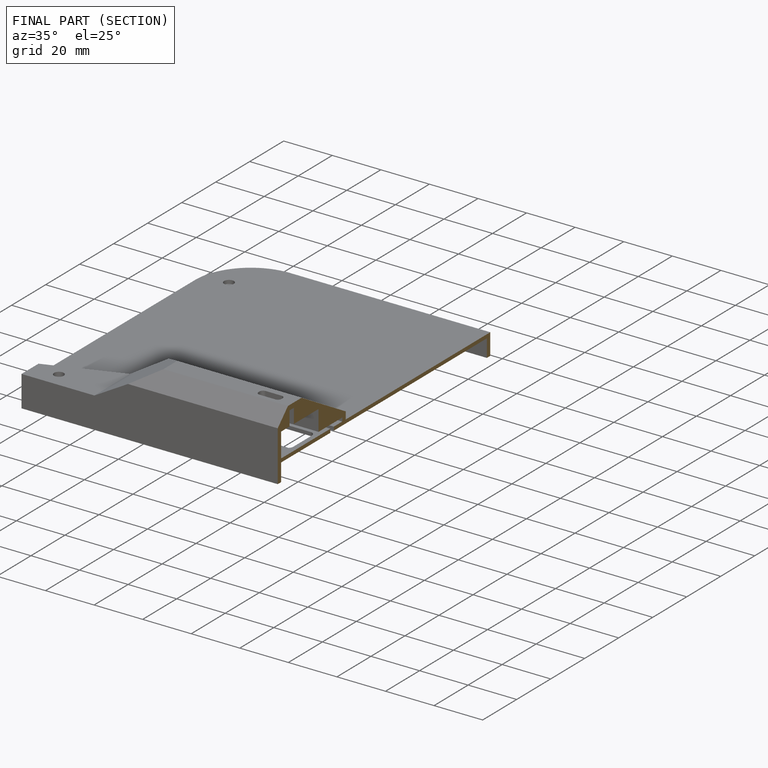
[diagram: finished part — half-section view (interior)]
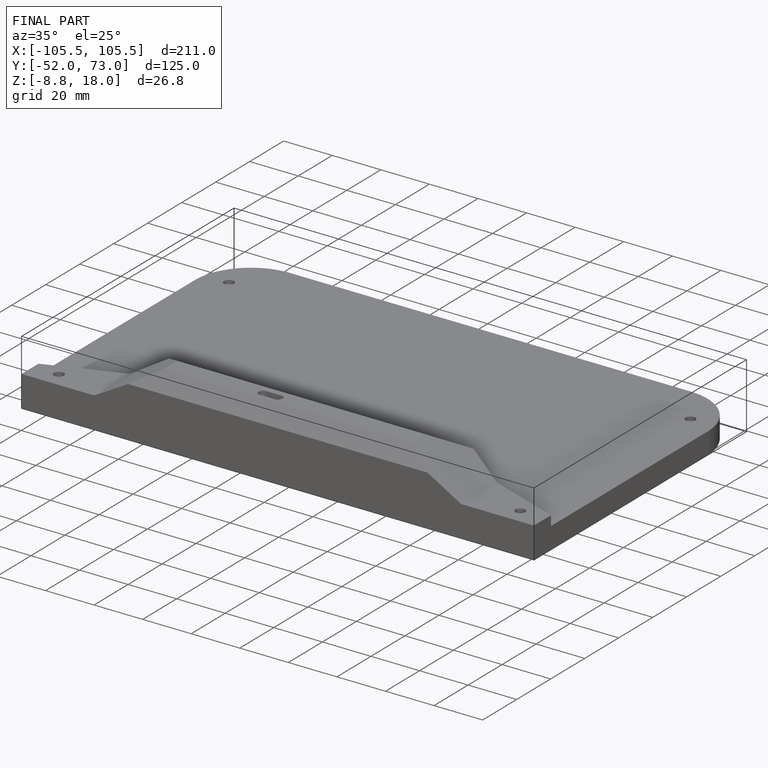
[diagram: finished part — iso view with bounding-box wireframe]
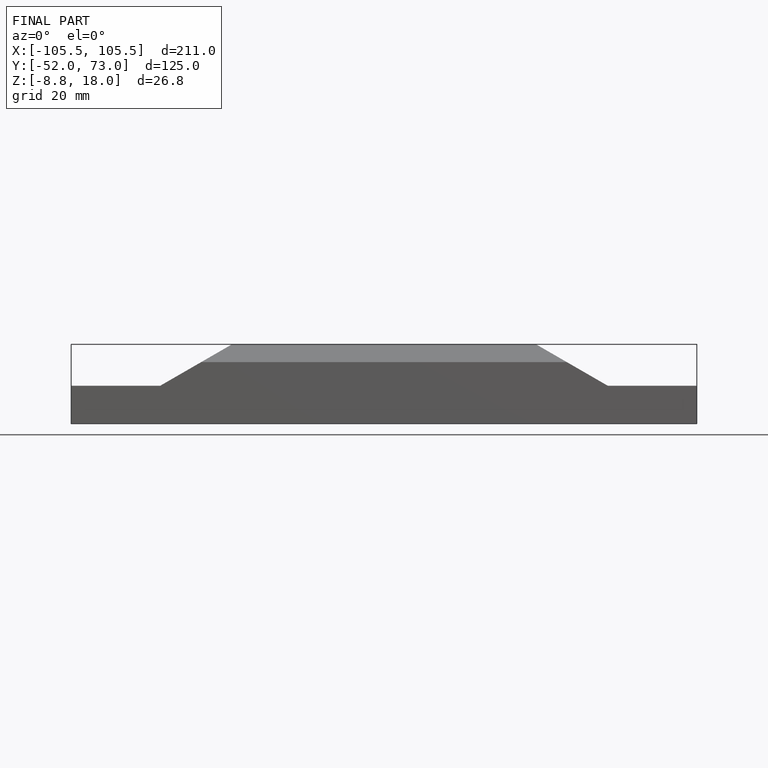
[diagram: finished part — front view with bounding-box wireframe]
